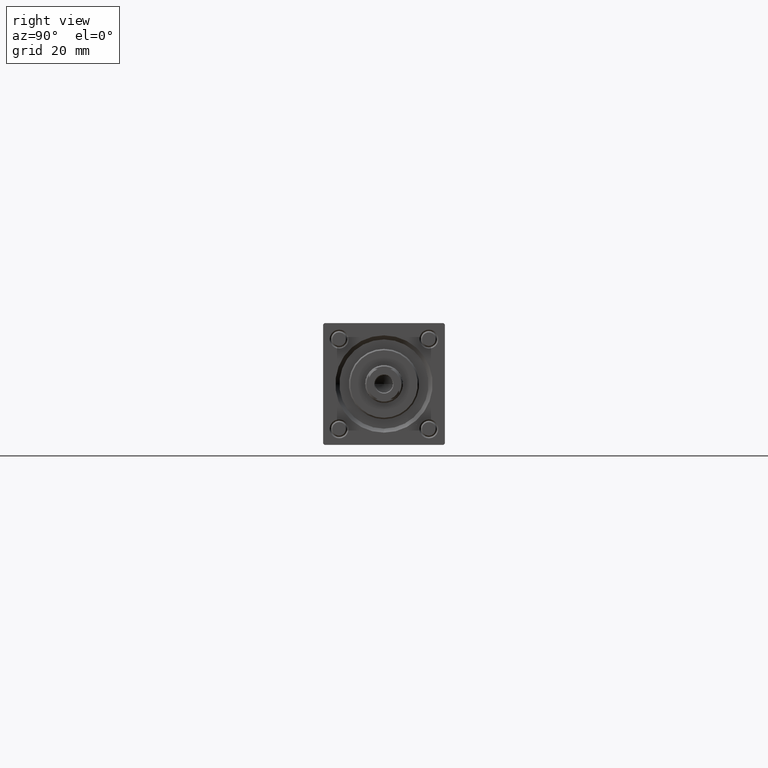
[diagram: clean part render]
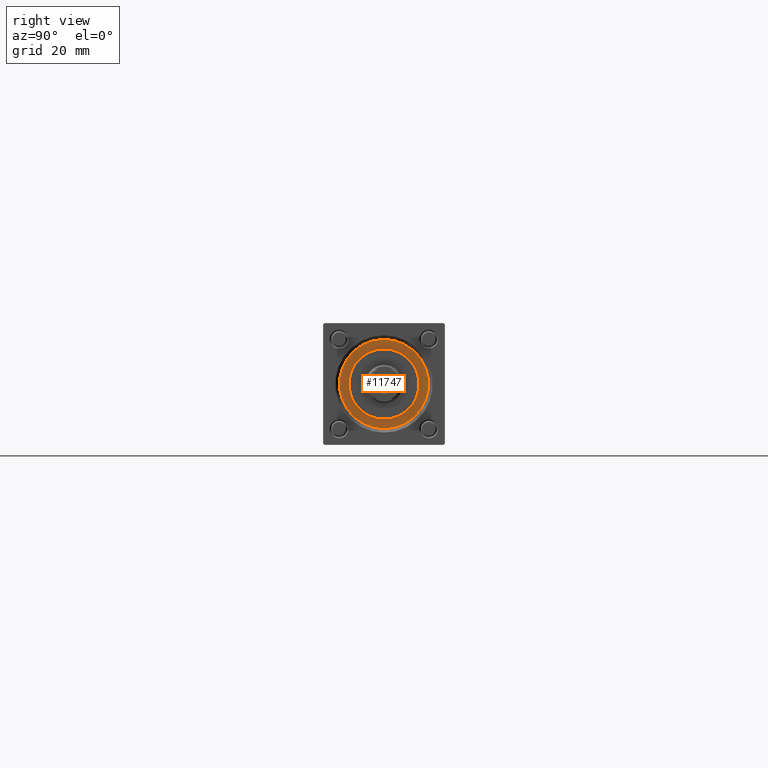
[diagram: same view with one face highlighted and labeled with its STEP entity id]
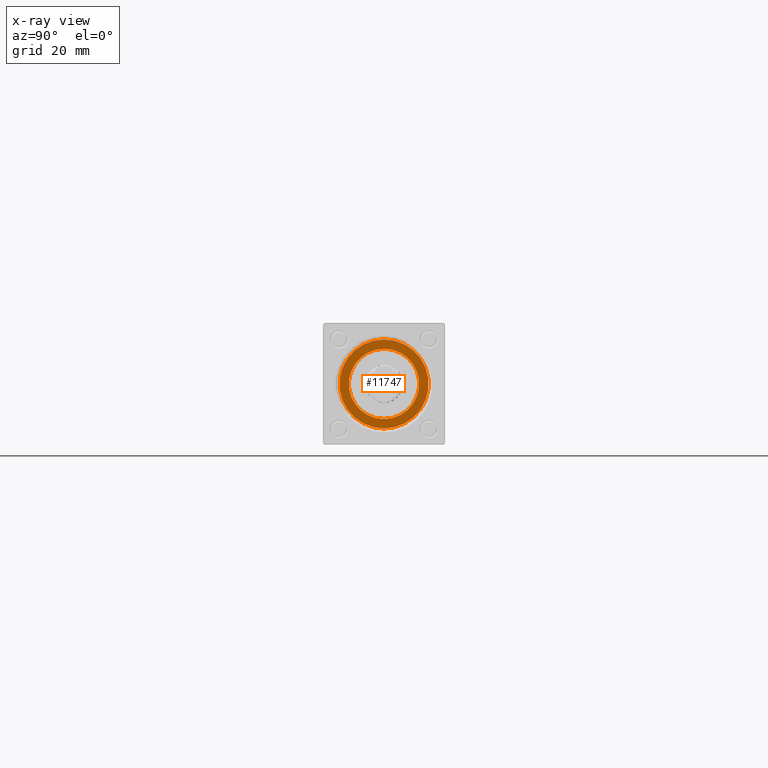
[diagram: x-ray of the same camera — body ghosted, the highlighted face saturated]
A machine part, right view. The second image highlights one B-rep face of the part: STEP entity #11747.
The next image is the same camera in x-ray: the body ghosted, the highlighted face saturated — about 0% of this face is hidden behind the body in this view.
In plain terms, the highlighted planar face has unit normal (1, 0, 0).
Its self-contained STEP definition (entity closure, byte-faithful):
#2233 = ORIENTED_EDGE ( 'NONE', *, *, #52559, .T. ) ;
#2530 = AXIS2_PLACEMENT_3D ( 'NONE', #20023, #55055, #8766 ) ;
#3594 = CARTESIAN_POINT ( 'NONE',  ( 0.000000000000000000, 0.000000000000000000, 28.69999999999999929 ) ) ;
#4852 = ORIENTED_EDGE ( 'NONE', *, *, #34248, .T. ) ;
#6871 = FACE_BOUND ( 'NONE', #12762, .T. ) ;
#7337 = DIRECTION ( 'NONE',  ( 0.000000000000000000, 0.000000000000000000, 1.000000000000000000 ) ) ;
#8766 = DIRECTION ( 'NONE',  ( 1.000000000000000000, 0.000000000000000000, 0.000000000000000000 ) ) ;
#11347 = CARTESIAN_POINT ( 'NONE',  ( -13.00000000000000178, 0.000000000000000000, 28.69999999999999929 ) ) ;
#11747 = ADVANCED_FACE ( 'NONE', ( #6871, #20390 ), #25258, .T. ) ;
#12762 = EDGE_LOOP ( 'NONE', ( #34770, #27225 ) ) ;
#13221 = AXIS2_PLACEMENT_3D ( 'NONE', #3594, #7337, #42413 ) ;
#16356 = DIRECTION ( 'NONE',  ( 0.000000000000000000, 0.000000000000000000, 1.000000000000000000 ) ) ;
#16575 = DIRECTION ( 'NONE',  ( 1.000000000000000000, 0.000000000000000000, 0.000000000000000000 ) ) ;
#17200 = EDGE_CURVE ( 'NONE', #23362, #24927, #30653, .T. ) ;
#18166 = AXIS2_PLACEMENT_3D ( 'NONE', #19763, #55929, #16575 ) ;
#19763 = CARTESIAN_POINT ( 'NONE',  ( 0.000000000000000000, 0.000000000000000000, 28.69999999999999929 ) ) ;
#20023 = CARTESIAN_POINT ( 'NONE',  ( 0.000000000000000000, 0.000000000000000000, 28.69999999999999929 ) ) ;
#20390 = FACE_OUTER_BOUND ( 'NONE', #32229, .T. ) ;
#21227 = VERTEX_POINT ( 'NONE', #24329 ) ;
#23362 = VERTEX_POINT ( 'NONE', #39748 ) ;
#24329 = CARTESIAN_POINT ( 'NONE',  ( 16.50000000000000000, 2.020667218593133100E-15, 28.69999999999999929 ) ) ;
#24927 = VERTEX_POINT ( 'NONE', #11347 ) ;
#25258 = PLANE ( 'NONE',  #49866 ) ;
#27225 = ORIENTED_EDGE ( 'NONE', *, *, #17200, .F. ) ;
#29402 = CARTESIAN_POINT ( 'NONE',  ( 0.000000000000000000, 0.000000000000000000, 28.69999999999999929 ) ) ;
#30653 = CIRCLE ( 'NONE', #13221, 13.00000000000000178 ) ;
#31893 = VERTEX_POINT ( 'NONE', #36258 ) ;
#32229 = EDGE_LOOP ( 'NONE', ( #2233, #4852 ) ) ;
#32861 = CIRCLE ( 'NONE', #18166, 16.50000000000000000 ) ;
#33308 = EDGE_CURVE ( 'NONE', #24927, #23362, #40173, .T. ) ;
#34064 = AXIS2_PLACEMENT_3D ( 'NONE', #29402, #46906, #47180 ) ;
#34248 = EDGE_CURVE ( 'NONE', #21227, #31893, #32861, .T. ) ;
#34770 = ORIENTED_EDGE ( 'NONE', *, *, #33308, .F. ) ;
#36258 = CARTESIAN_POINT ( 'NONE',  ( -16.50000000000000000, 0.000000000000000000, 28.69999999999999929 ) ) ;
#39748 = CARTESIAN_POINT ( 'NONE',  ( 13.00000000000000178, 1.592040838891559293E-15, 28.69999999999999929 ) ) ;
#40173 = CIRCLE ( 'NONE', #2530, 13.00000000000000178 ) ;
#42413 = DIRECTION ( 'NONE',  ( 1.000000000000000000, 0.000000000000000000, 0.000000000000000000 ) ) ;
#42803 = CARTESIAN_POINT ( 'NONE',  ( 0.000000000000000000, 0.000000000000000000, 28.69999999999999929 ) ) ;
#46906 = DIRECTION ( 'NONE',  ( 0.000000000000000000, 0.000000000000000000, 1.000000000000000000 ) ) ;
#47180 = DIRECTION ( 'NONE',  ( 1.000000000000000000, 0.000000000000000000, 0.000000000000000000 ) ) ;
#49866 = AXIS2_PLACEMENT_3D ( 'NONE', #42803, #16356, #50814 ) ;
#50814 = DIRECTION ( 'NONE',  ( 1.000000000000000000, 0.000000000000000000, -0.000000000000000000 ) ) ;
#52559 = EDGE_CURVE ( 'NONE', #31893, #21227, #55115, .T. ) ;
#55055 = DIRECTION ( 'NONE',  ( 0.000000000000000000, 0.000000000000000000, 1.000000000000000000 ) ) ;
#55115 = CIRCLE ( 'NONE', #34064, 16.50000000000000000 ) ;
#55929 = DIRECTION ( 'NONE',  ( 0.000000000000000000, 0.000000000000000000, 1.000000000000000000 ) ) ;